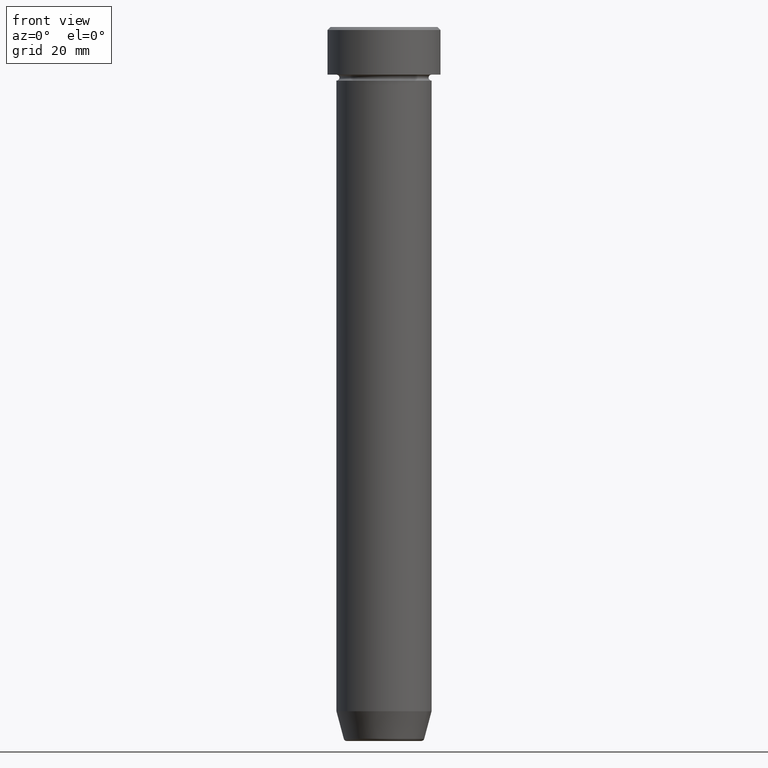
[diagram: clean part render]
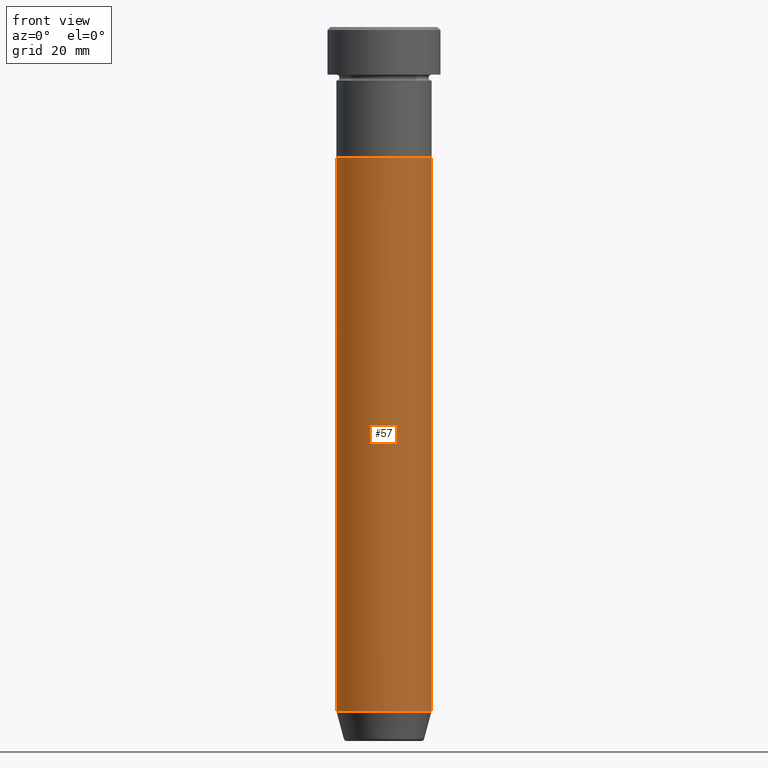
[diagram: same view with one face highlighted and labeled with its STEP entity id]
A machine part, front view. The second image highlights one B-rep face of the part: STEP entity #57.
In plain terms, the highlighted cylindrical surface (partial cylindrical patch) has radius 8 mm, axis along (-0, -0, 1).
Its self-contained STEP definition (entity closure, byte-faithful):
#24 = CYLINDRICAL_SURFACE ( 'NONE', #184, 8.000000000000000000 ) ;
#30 = CIRCLE ( 'NONE', #547, 8.000000000000000000 ) ;
#43 = EDGE_CURVE ( 'NONE', #417, #256, #357, .T. ) ;
#57 = ADVANCED_FACE ( 'NONE', ( #435 ), #24, .T. ) ;
#64 = EDGE_CURVE ( 'NONE', #196, #417, #107, .T. ) ;
#79 = VECTOR ( 'NONE', #314, 1000.000000000000000 ) ;
#84 = CARTESIAN_POINT ( 'NONE',  ( 0.000000000000000000, 0.000000000000000000, -22.00000000000000000 ) ) ;
#107 = CIRCLE ( 'NONE', #521, 8.000000000000000000 ) ;
#109 = ORIENTED_EDGE ( 'NONE', *, *, #43, .T. ) ;
#134 = CARTESIAN_POINT ( 'NONE',  ( 8.000000000000000000, 0.000000000000000000, -22.00000000000000000 ) ) ;
#153 = VECTOR ( 'NONE', #201, 1000.000000000000000 ) ;
#163 = CARTESIAN_POINT ( 'NONE',  ( -8.000000000000000000, 9.797174393178825657E-16, 0.000000000000000000 ) ) ;
#167 = DIRECTION ( 'NONE',  ( -0.000000000000000000, -0.000000000000000000, 1.000000000000000000 ) ) ;
#177 = DIRECTION ( 'NONE',  ( 1.000000000000000000, 0.000000000000000000, 0.000000000000000000 ) ) ;
#184 = AXIS2_PLACEMENT_3D ( 'NONE', #386, #569, #527 ) ;
#193 = ORIENTED_EDGE ( 'NONE', *, *, #255, .F. ) ;
#196 = VERTEX_POINT ( 'NONE', #272 ) ;
#201 = DIRECTION ( 'NONE',  ( -0.000000000000000000, -0.000000000000000000, 1.000000000000000000 ) ) ;
#202 = CARTESIAN_POINT ( 'NONE',  ( 8.000000000000000000, 0.000000000000000000, 0.000000000000000000 ) ) ;
#249 = CARTESIAN_POINT ( 'NONE',  ( -8.000000000000000000, 9.797174393178825657E-16, -22.00000000000000000 ) ) ;
#255 = EDGE_CURVE ( 'NONE', #470, #256, #30, .T. ) ;
#256 = VERTEX_POINT ( 'NONE', #134 ) ;
#268 = ORIENTED_EDGE ( 'NONE', *, *, #439, .F. ) ;
#272 = CARTESIAN_POINT ( 'NONE',  ( -8.000000000000000000, 9.797174393178825657E-16, -114.9999999999999858 ) ) ;
#292 = EDGE_LOOP ( 'NONE', ( #268, #352, #109, #193 ) ) ;
#301 = DIRECTION ( 'NONE',  ( 1.000000000000000000, 0.000000000000000000, 0.000000000000000000 ) ) ;
#314 = DIRECTION ( 'NONE',  ( -0.000000000000000000, -0.000000000000000000, 1.000000000000000000 ) ) ;
#352 = ORIENTED_EDGE ( 'NONE', *, *, #64, .T. ) ;
#357 = LINE ( 'NONE', #202, #79 ) ;
#386 = CARTESIAN_POINT ( 'NONE',  ( 0.000000000000000000, 0.000000000000000000, 0.000000000000000000 ) ) ;
#394 = CARTESIAN_POINT ( 'NONE',  ( 0.000000000000000000, 0.000000000000000000, -114.9999999999999858 ) ) ;
#405 = DIRECTION ( 'NONE',  ( -0.000000000000000000, -0.000000000000000000, 1.000000000000000000 ) ) ;
#417 = VERTEX_POINT ( 'NONE', #558 ) ;
#435 = FACE_OUTER_BOUND ( 'NONE', #292, .T. ) ;
#439 = EDGE_CURVE ( 'NONE', #196, #470, #481, .T. ) ;
#470 = VERTEX_POINT ( 'NONE', #249 ) ;
#481 = LINE ( 'NONE', #163, #153 ) ;
#521 = AXIS2_PLACEMENT_3D ( 'NONE', #394, #167, #301 ) ;
#527 = DIRECTION ( 'NONE',  ( 1.000000000000000000, 0.000000000000000000, 0.000000000000000000 ) ) ;
#547 = AXIS2_PLACEMENT_3D ( 'NONE', #84, #405, #177 ) ;
#558 = CARTESIAN_POINT ( 'NONE',  ( 8.000000000000000000, 0.000000000000000000, -114.9999999999999858 ) ) ;
#569 = DIRECTION ( 'NONE',  ( -0.000000000000000000, -0.000000000000000000, 1.000000000000000000 ) ) ;